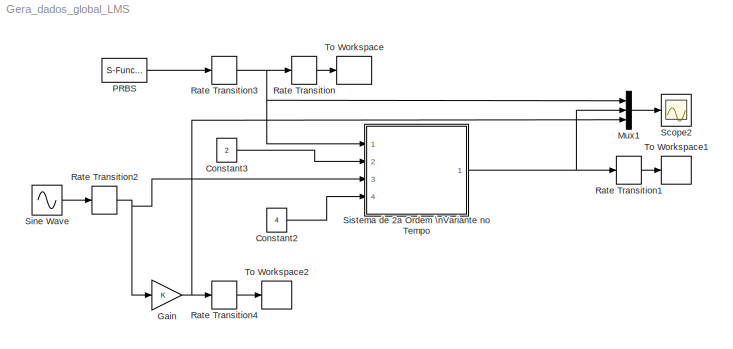
MODEL Gera_dados_global_LMS
KIND model
BLOCK [Constant] Constant2
  SID = 37
  Value = 4
BLOCK [Constant] Constant3
  SID = 38
  Value = 2
BLOCK [Gain] Gain
  OutDataTypeStr = Inherit: Inherit via internal rule
  ParamDataTypeStr = Inherit: Inherit via internal rule
  SID = 3
  SaturateOnIntegerOverflow = off
BLOCK [Mux] Mux1
  DisplayOption = bar
  Inputs = 3
  Ports = [3, 1]
  SID = 4
BLOCK [S-Function] PRBS
  EnableBusSupport = off
  FunctionName = sf_prbs
  Parameters = K,N,Ts
  Ports = [0, 1]
  SFcnIsStateOwnerBlock = off
  SFunctionDeploymentMode = off
  SID = 5
BLOCK [RateTransition] Rate Transition
  SID = 6
BLOCK [RateTransition] Rate Transition1
  SID = 7
BLOCK [RateTransition] Rate Transition2
  SID = 8
BLOCK [RateTransition] Rate Transition3
  SID = 9
BLOCK [RateTransition] Rate Transition4
  InitialCondition = 0.05
  SID = 10
BLOCK [Scope] Scope2
  Floating = off
  NumInputPorts = 1
  Ports = [1]
  SID = 11
  ScopeSpecificationString = Simulink.scopes.TimeScopeBlockCfg('CurrentConfiguration', extmgr.ConfigurationSet(extmgr.Configuration('Core','General UI',true),extmgr.Configuration('Core','Source UI',true),extmgr.Configuration('Sources','WiredSimulink',true,'DataLoggingVariableName','ScopeData2','DataLoggingSaveFormat','StructureWithTime','DataLoggingDecimation','1','DataLoggingDecimateData',true),extmgr.Configuration('Visuals'...<+1770ch>
BLOCK [Sin] Sine Wave
  Amplitude = 0.4
  Bias = 0.5
  Frequency = 0.05
  Ports = [0, 1]
  SID = 12
  SampleTime = 0
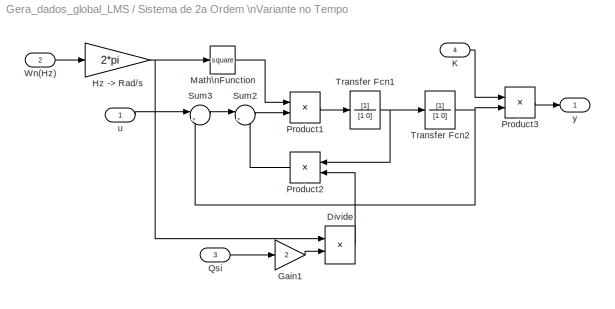
BLOCK [SubSystem] Sistema de 2a Ordem \nVariante no Tempo
  Ports = [4, 1]
  RequestExecContextInheritance = off
  SID = 13
BLOCK [Product] Sistema de 2a Ordem \nVariante no Tempo/Divide
  InputSameDT = off
  Inputs = /*
  OutDataTypeStr = Inherit: Inherit via internal rule
  Ports = [2, 1]
  RndMeth = Floor
  SID = 18
  SaturateOnIntegerOverflow = off
BLOCK [Gain] Sistema de 2a Ordem \nVariante no Tempo/Gain1
  Gain = 2
  OutDataTypeStr = Inherit: Inherit via internal rule
  ParamDataTypeStr = Inherit: Inherit via internal rule
  SID = 19
  SaturateOnIntegerOverflow = off
BLOCK [Gain] Sistema de 2a Ordem \nVariante no Tempo/Hz -> Rad//s
  Gain = 2*pi
  OutDataTypeStr = Inherit: Inherit via internal rule
  ParamDataTypeStr = Inherit: Inherit via internal rule
  SID = 20
  SaturateOnIntegerOverflow = off
BLOCK [Inport] Sistema de 2a Ordem \nVariante no Tempo/K
  IconDisplay = Port number
  Port = 4
  SID = 17
BLOCK [Math] Sistema de 2a Ordem \nVariante no Tempo/Math\nFunction
  Operator = square
  Ports = [1, 1]
  SID = 21
BLOCK [Product] Sistema de 2a Ordem \nVariante no Tempo/Product1
  InputSameDT = off
  OutDataTypeStr = Inherit: Inherit via internal rule
  Ports = [2, 1]
  SID = 22
  SaturateOnIntegerOverflow = off
BLOCK [Product] Sistema de 2a Ordem \nVariante no Tempo/Product2
  InputSameDT = off
  OutDataTypeStr = Inherit: Inherit via internal rule
  Ports = [2, 1]
  SID = 23
  SaturateOnIntegerOverflow = off
BLOCK [Product] Sistema de 2a Ordem \nVariante no Tempo/Product3
  InputSameDT = off
  OutDataTypeStr = Inherit: Inherit via internal rule
  Ports = [2, 1]
  SID = 24
  SaturateOnIntegerOverflow = off
BLOCK [Inport] Sistema de 2a Ordem \nVariante no Tempo/Qsi
  IconDisplay = Port number
  Port = 3
  SID = 16
BLOCK [Sum] Sistema de 2a Ordem \nVariante no Tempo/Sum2
  IconShape = round
  InputSameDT = off
  Inputs = |+-
  OutDataTypeStr = Inherit: Inherit via internal rule
  Ports = [2, 1]
  SID = 25
  SaturateOnIntegerOverflow = off
BLOCK [Sum] Sistema de 2a Ordem \nVariante no Tempo/Sum3
  IconShape = round
  InputSameDT = off
  Inputs = |+-
  OutDataTypeStr = Inherit: Inherit via internal rule
  Ports = [2, 1]
  SID = 26
  SaturateOnIntegerOverflow = off
BLOCK [TransferFcn] Sistema de 2a Ordem \nVariante no Tempo/Transfer Fcn1
  Denominator = [1 0]
  SID = 27
BLOCK [TransferFcn] Sistema de 2a Ordem \nVariante no Tempo/Transfer Fcn2
  Denominator = [1 0]
  SID = 28
BLOCK [Inport] Sistema de 2a Ordem \nVariante no Tempo/Wn(Hz)
  IconDisplay = Port number
  Port = 2
  SID = 15
BLOCK [Inport] Sistema de 2a Ordem \nVariante no Tempo/u
  IconDisplay = Port number
  SID = 14
BLOCK [Outport] Sistema de 2a Ordem \nVariante no Tempo/y
  IconDisplay = Port number
  SID = 29
BLOCK [ToWorkspace] To Workspace
  MaxDataPoints = inf
  Ports = [1]
  SID = 30
  SampleTime = 0.05
  VariableName = u
BLOCK [ToWorkspace] To Workspace1
  MaxDataPoints = inf
  Ports = [1]
  SID = 31
  SampleTime = 0.05
  VariableName = y
BLOCK [ToWorkspace] To Workspace2
  MaxDataPoints = inf
  Ports = [1]
  SID = 32
  SampleTime = 0.05
  VariableName = p
LINE Constant2:1 -> Sistema de 2a Ordem \nVariante no Tempo:4
LINE Constant3:1 -> Sistema de 2a Ordem \nVariante no Tempo:2
NET Gain:1 -> Mux1:3, Rate Transition4:1
LINE Mux1:1 -> Scope2:1
LINE PRBS:1 -> Rate Transition3:1
LINE Rate Transition1:1 -> To Workspace1:1
NET Rate Transition2:1 -> Gain:1, Sistema de 2a Ordem \nVariante no Tempo:3
NET Rate Transition3:1 -> Mux1:1, Rate Transition:1, Sistema de 2a Ordem \nVariante no Tempo:1
LINE Rate Transition4:1 -> To Workspace2:1
LINE Rate Transition:1 -> To Workspace:1
LINE Sine Wave:1 -> Rate Transition2:1
LINE Sistema de 2a Ordem \nVariante no Tempo/Divide:1 -> Sistema de 2a Ordem \nVariante no Tempo/Product2:2
LINE Sistema de 2a Ordem \nVariante no Tempo/Gain1:1 -> Sistema de 2a Ordem \nVariante no Tempo/Divide:2
NET Sistema de 2a Ordem \nVariante no Tempo/Hz -> Rad//s:1 -> Sistema de 2a Ordem \nVariante no Tempo/Divide:1, Sistema de 2a Ordem \nVariante no Tempo/Math\nFunction:1
LINE Sistema de 2a Ordem \nVariante no Tempo/K:1 -> Sistema de 2a Ordem \nVariante no Tempo/Product3:1
LINE Sistema de 2a Ordem \nVariante no Tempo/Math\nFunction:1 -> Sistema de 2a Ordem \nVariante no Tempo/Product1:1
LINE Sistema de 2a Ordem \nVariante no Tempo/Product1:1 -> Sistema de 2a Ordem \nVariante no Tempo/Transfer Fcn1:1
LINE Sistema de 2a Ordem \nVariante no Tempo/Product2:1 -> Sistema de 2a Ordem \nVariante no Tempo/Sum2:2
LINE Sistema de 2a Ordem \nVariante no Tempo/Product3:1 -> Sistema de 2a Ordem \nVariante no Tempo/y:1
LINE Sistema de 2a Ordem \nVariante no Tempo/Qsi:1 -> Sistema de 2a Ordem \nVariante no Tempo/Gain1:1
LINE Sistema de 2a Ordem \nVariante no Tempo/Sum2:1 -> Sistema de 2a Ordem \nVariante no Tempo/Product1:2
LINE Sistema de 2a Ordem \nVariante no Tempo/Sum3:1 -> Sistema de 2a Ordem \nVariante no Tempo/Sum2:1
NET Sistema de 2a Ordem \nVariante no Tempo/Transfer Fcn1:1 -> Sistema de 2a Ordem \nVariante no Tempo/Product2:1, Sistema de 2a Ordem \nVariante no Tempo/Transfer Fcn2:1
NET Sistema de 2a Ordem \nVariante no Tempo/Transfer Fcn2:1 -> Sistema de 2a Ordem \nVariante no Tempo/Product3:2, Sistema de 2a Ordem \nVariante no Tempo/Sum3:2
LINE Sistema de 2a Ordem \nVariante no Tempo/Wn(Hz):1 -> Sistema de 2a Ordem \nVariante no Tempo/Hz -> Rad//s:1
LINE Sistema de 2a Ordem \nVariante no Tempo/u:1 -> Sistema de 2a Ordem \nVariante no Tempo/Sum3:1
NET Sistema de 2a Ordem \nVariante no Tempo:1 -> Mux1:2, Rate Transition1:1
note: NET lines group one-source signal fan-out (src -> all destinations, sorted); 1:1 wires keep LINE
